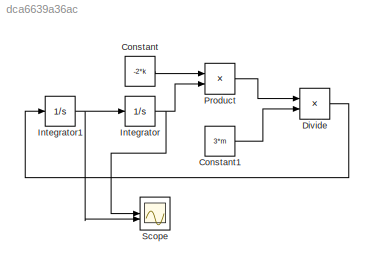
MODEL slx_dca6639a36ac
KIND model
CONFIG AbsTol = auto
CONFIG EnableMultiTasking = off
CONFIG FixedStep = auto
CONFIG MaxStep = 0.001
CONFIG MinStep = auto
CONFIG RelTol = 1e-3
CONFIG SampleTimeConstraint = Unconstrained
CONFIG SolverName = ode45
CONFIG StartTime = 0.0
CONFIG StopTime = 10.0
BLOCK [Constant] Constant
  Value = -2*k
BLOCK [Constant] Constant1
  Value = 3*m
BLOCK [Product] Divide
  Inputs = */
BLOCK [Integrator] Integrator
BLOCK [Integrator] Integrator1
  InitialCondition = 2
BLOCK [Product] Product
BLOCK [Scope] Scope
  ActiveDisplayYMaximum = 2.4999499319346539
  ActiveDisplayYMinimum = -2.499549387411887
  Floating = off
  GraphicalSettings = {"Style":{"BackgroundColor":[0.12941176470588237,0.12941176470588237,0.12941176470588237],"AxesColor":[0.07058823529411765,0.07058823529411765,0.07058823529411765],"LabelsColor":[0.8509803921568627,0.8509803921568627,0.8509803921568627],"PreserveColors":false,"Visible":[true,true],"LineStyle":["-","-"],"LineWidth":[1.5,1.5],"BarWidth":[0.9,0.9],"LineColor":["auto","auto"],"LineFaceAlpha":[1,1],"Li...<+2122ch>
  MultipleDisplayCache = [{"MaxYLimMag":2.4999499319346539,"MaxYLimReal":2.4999499319346539,"MinYLimMag":0,"MinYLimReal":-2.499549387411887,"PlotAsMagnitudePhase":false,"ShowGrid":true,"ShowLegend":false,"Title":"%<SignalLabel>","YLabel":""}]
  NumInputPorts = 2
  ScopeFrameLocation = window
  Visible = on
  WasSavedAsWebScope = on
  WindowPosition = [55.000000,387.000000,560.000000,413.000000,]
LINE Constant1:1 -> Divide:2
LINE Constant:1 -> Product:1
LINE Divide:1 -> Integrator1:1
NET Integrator1:1 -> Integrator:1, Scope:2
NET Integrator:1 -> Product:2, Scope:1
LINE Product:1 -> Divide:1
note: NET lines group one-source signal fan-out (src -> all destinations, sorted); 1:1 wires keep LINE
